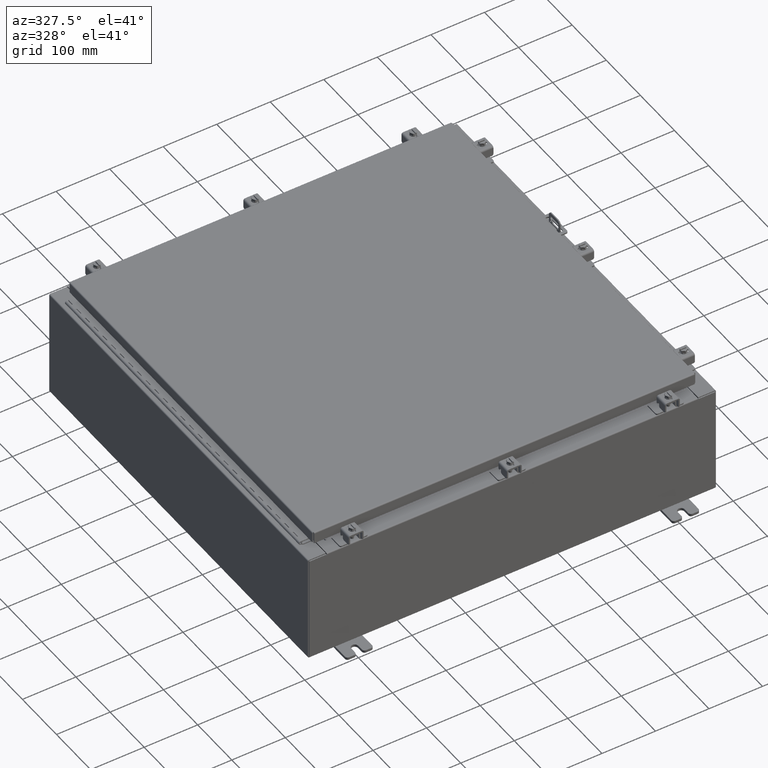
[diagram: clean part render]
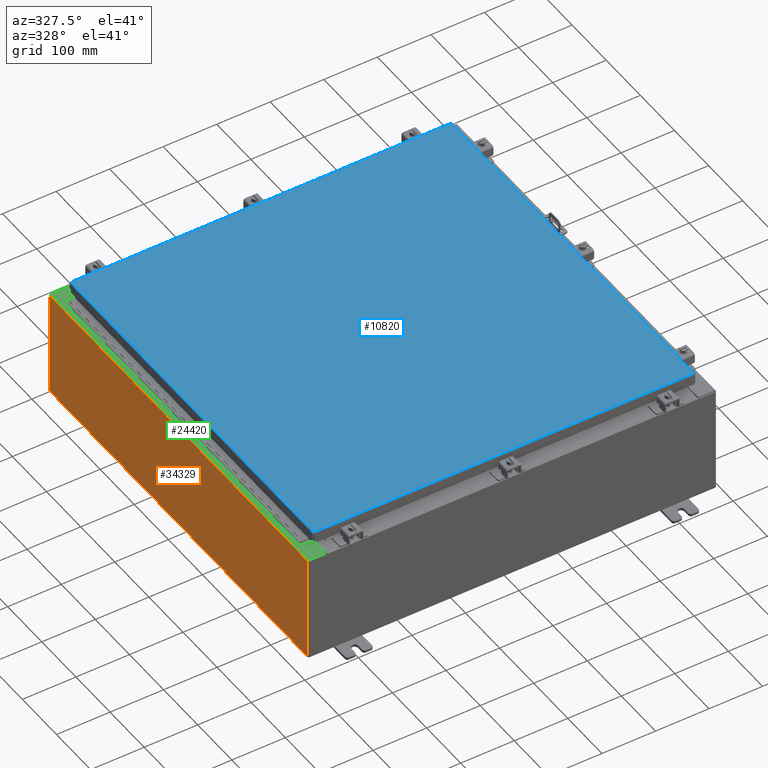
[diagram: same view with three faces highlighted in distinct colors, each labeled with its STEP entity id]
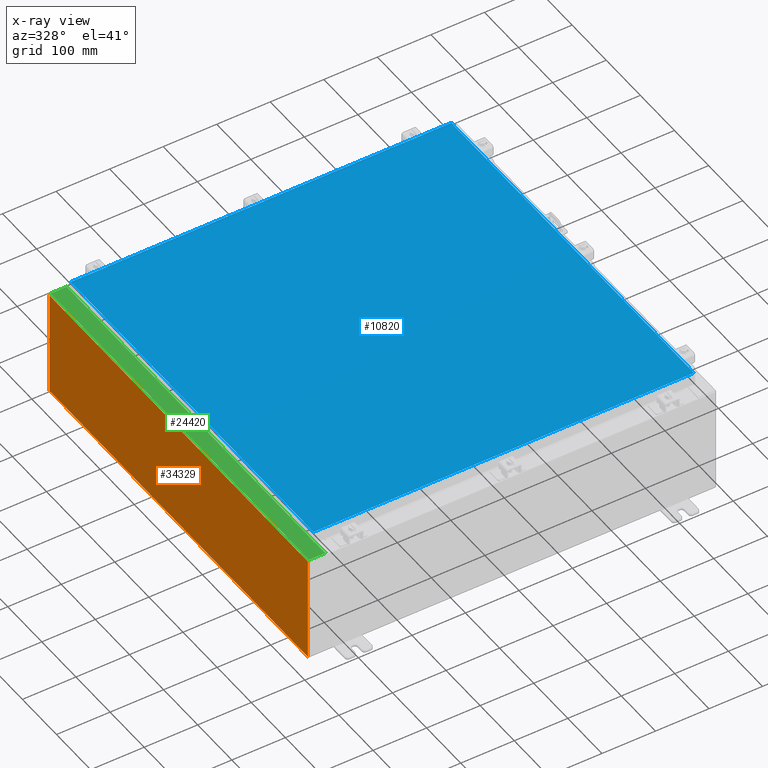
[diagram: x-ray of the same camera — body ghosted, the three highlighted faces saturated]
A machine part, auxiliary view with three faces highlighted in distinct colors.
The next image is the same camera in x-ray (body ghosted, the three faces saturated) — at least one of them is partly hidden behind the body in this view.
Their STEP definitions:

[orange] entity #34329 — the highlighted planar face has unit normal (1, 0, 0).
#305 = CARTESIAN_POINT ( 'NONE',  ( -15.00000000000000000, 14.92530000000000000, 0.01299999999999984700 ) ) ;
#1194 = ORIENTED_EDGE ( 'NONE', *, *, #12058, .T. ) ;
#2332 = CARTESIAN_POINT ( 'NONE',  ( -15.00000000000002800, 14.92530000000000000, 7.837599999999999200 ) ) ;
#2384 = VECTOR ( 'NONE', #35609, 39.37007874015748100 ) ;
#2671 = LINE ( 'NONE', #32194, #11513 ) ;
#2801 = CARTESIAN_POINT ( 'NONE',  ( -15.00000000000000000, 0.0000000000000000000, -5.403395625144962700E-014 ) ) ;
#4840 = CARTESIAN_POINT ( 'NONE',  ( -15.00000000000000000, 14.92530000000000000, 0.01299999999999983600 ) ) ;
#5801 = DIRECTION ( 'NONE',  ( 3.584876173029202900E-015, 0.0000000000000000000, -1.000000000000000000 ) ) ;
#7394 = VERTEX_POINT ( 'NONE', #4840 ) ;
#8090 = LINE ( 'NONE', #23418, #36907 ) ;
#9321 = DIRECTION ( 'NONE',  ( -0.0000000000000000000, 1.000000000000000000, -0.0000000000000000000 ) ) ;
#11513 = VECTOR ( 'NONE', #14353, 39.37007874015748100 ) ;
#12058 = EDGE_CURVE ( 'NONE', #24929, #14352, #8090, .T. ) ;
#12698 = VERTEX_POINT ( 'NONE', #2332 ) ;
#13562 = CARTESIAN_POINT ( 'NONE',  ( -15.00000000000002800, -14.92530000000000000, 7.837599999999999200 ) ) ;
#14055 = ORIENTED_EDGE ( 'NONE', *, *, #33696, .T. ) ;
#14352 = VERTEX_POINT ( 'NONE', #13562 ) ;
#14353 = DIRECTION ( 'NONE',  ( 3.584876173029202900E-015, 0.0000000000000000000, -1.000000000000000000 ) ) ;
#14772 = CARTESIAN_POINT ( 'NONE',  ( -15.00000000000002800, -14.92530000000000000, 7.837599999999999200 ) ) ;
#17224 = LINE ( 'NONE', #14772, #2384 ) ;
#18473 = LINE ( 'NONE', #305, #26400 ) ;
#18986 = ORIENTED_EDGE ( 'NONE', *, *, #23622, .T. ) ;
#23139 = EDGE_CURVE ( 'NONE', #24929, #7394, #18473, .T. ) ;
#23418 = CARTESIAN_POINT ( 'NONE',  ( -15.00000000000000000, -14.92530000000000000, -5.403395625144962700E-014 ) ) ;
#23546 = DIRECTION ( 'NONE',  ( 1.000000000000000000, 0.0000000000000000000, 3.584876173029202900E-015 ) ) ;
#23622 = EDGE_CURVE ( 'NONE', #12698, #7394, #2671, .T. ) ;
#24929 = VERTEX_POINT ( 'NONE', #29642 ) ;
#26400 = VECTOR ( 'NONE', #9321, 39.37007874015748100 ) ;
#29642 = CARTESIAN_POINT ( 'NONE',  ( -15.00000000000000000, -14.92530000000000000, 0.01299999999999984700 ) ) ;
#32194 = CARTESIAN_POINT ( 'NONE',  ( -15.00000000000000000, 14.92530000000000000, -5.403395625144962700E-014 ) ) ;
#33696 = EDGE_CURVE ( 'NONE', #14352, #12698, #17224, .T. ) ;
#34329 = ADVANCED_FACE ( 'NONE', ( #36303 ), #35458, .F. ) ;
#34835 = EDGE_LOOP ( 'NONE', ( #14055, #18986, #37800, #1194 ) ) ;
#35458 = PLANE ( 'NONE',  #36954 ) ;
#35609 = DIRECTION ( 'NONE',  ( 0.0000000000000000000, 1.000000000000000000, 0.0000000000000000000 ) ) ;
#36303 = FACE_OUTER_BOUND ( 'NONE', #34835, .T. ) ;
#36907 = VECTOR ( 'NONE', #38424, 39.37007874015748100 ) ;
#36954 = AXIS2_PLACEMENT_3D ( 'NONE', #2801, #23546, #5801 ) ;
#37800 = ORIENTED_EDGE ( 'NONE', *, *, #23139, .F. ) ;
#38424 = DIRECTION ( 'NONE',  ( -3.584876173029202900E-015, 0.0000000000000000000, 1.000000000000000000 ) ) ;

[blue] entity #10820 — the highlighted planar face has unit normal (0, 0, -1).
#2378 = VERTEX_POINT ( 'NONE', #20078 ) ;
#2640 = EDGE_CURVE ( 'NONE', #19468, #36786, #19563, .T. ) ;
#2831 = ORIENTED_EDGE ( 'NONE', *, *, #11045, .T. ) ;
#3560 = CARTESIAN_POINT ( 'NONE',  ( 13.99030000000000100, 14.00629999999999400, 8.878505979408856000E-016 ) ) ;
#4119 = AXIS2_PLACEMENT_3D ( 'NONE', #17508, #8731, #29505 ) ;
#4448 = DIRECTION ( 'NONE',  ( 1.000000000000000000, -0.0000000000000000000, -0.0000000000000000000 ) ) ;
#5032 = EDGE_CURVE ( 'NONE', #36786, #2378, #30072, .T. ) ;
#6018 = LINE ( 'NONE', #9336, #12970 ) ;
#6387 = CARTESIAN_POINT ( 'NONE',  ( -13.99029999999999600, -14.00630000000000300, 3.073328992872296200E-015 ) ) ;
#6487 = EDGE_LOOP ( 'NONE', ( #9939, #2831, #7903, #27385 ) ) ;
#7903 = ORIENTED_EDGE ( 'NONE', *, *, #19054, .T. ) ;
#8164 = LINE ( 'NONE', #30793, #31871 ) ;
#8731 = DIRECTION ( 'NONE',  ( 0.0000000000000000000, 0.0000000000000000000, -1.000000000000000000 ) ) ;
#9180 = CARTESIAN_POINT ( 'NONE',  ( -13.99029999999999800, 14.00629999999999600, -2.048885995248197400E-016 ) ) ;
#9336 = CARTESIAN_POINT ( 'NONE',  ( 13.99030000000000100, 14.00629999999999400, 8.878505979408856000E-016 ) ) ;
#9939 = ORIENTED_EDGE ( 'NONE', *, *, #5032, .T. ) ;
#10820 = ADVANCED_FACE ( 'NONE', ( #16473 ), #14559, .F. ) ;
#11045 = EDGE_CURVE ( 'NONE', #2378, #14121, #8164, .T. ) ;
#11679 = VECTOR ( 'NONE', #24607, 39.37007874015748100 ) ;
#12970 = VECTOR ( 'NONE', #15277, 39.37007874015748100 ) ;
#12977 = DIRECTION ( 'NONE',  ( 0.0000000000000000000, 1.000000000000000000, 0.0000000000000000000 ) ) ;
#14121 = VERTEX_POINT ( 'NONE', #3560 ) ;
#14559 = PLANE ( 'NONE',  #4119 ) ;
#15277 = DIRECTION ( 'NONE',  ( -1.000000000000000000, -0.0000000000000000000, -0.0000000000000000000 ) ) ;
#16473 = FACE_OUTER_BOUND ( 'NONE', #6487, .T. ) ;
#17508 = CARTESIAN_POINT ( 'NONE',  ( 0.0000000000000000000, 0.0000000000000000000, 0.0000000000000000000 ) ) ;
#19054 = EDGE_CURVE ( 'NONE', #14121, #19468, #6018, .T. ) ;
#19468 = VERTEX_POINT ( 'NONE', #9180 ) ;
#19563 = LINE ( 'NONE', #33442, #11679 ) ;
#20078 = CARTESIAN_POINT ( 'NONE',  ( 13.99030000000000100, -14.00630000000000300, -2.048885995248197400E-016 ) ) ;
#22896 = CARTESIAN_POINT ( 'NONE',  ( -13.99029999999999200, -14.00630000000000300, 3.056254942911894500E-015 ) ) ;
#24607 = DIRECTION ( 'NONE',  ( 0.0000000000000000000, -1.000000000000000000, 0.0000000000000000000 ) ) ;
#27385 = ORIENTED_EDGE ( 'NONE', *, *, #2640, .T. ) ;
#28205 = VECTOR ( 'NONE', #4448, 39.37007874015748100 ) ;
#29505 = DIRECTION ( 'NONE',  ( -1.000000000000000000, 0.0000000000000000000, -0.0000000000000000000 ) ) ;
#30072 = LINE ( 'NONE', #22896, #28205 ) ;
#30793 = CARTESIAN_POINT ( 'NONE',  ( 13.99030000000000100, -14.00630000000000300, -2.048885995248197400E-016 ) ) ;
#31871 = VECTOR ( 'NONE', #12977, 39.37007874015748100 ) ;
#33442 = CARTESIAN_POINT ( 'NONE',  ( -13.99029999999999800, 14.00629999999999600, -2.048885995248197400E-016 ) ) ;
#36786 = VERTEX_POINT ( 'NONE', #6387 ) ;

[green] entity #24420 — the highlighted planar face has unit normal (0, 0, -1).
#425 = DIRECTION ( 'NONE',  ( 1.000000000000000000, 0.0000000000000000000, 0.0000000000000000000 ) ) ;
#674 = VECTOR ( 'NONE', #1295, 39.37007874015748100 ) ;
#949 = VECTOR ( 'NONE', #32187, 39.37007874015748100 ) ;
#1295 = DIRECTION ( 'NONE',  ( 1.000000000000000000, 0.0000000000000000000, -2.170286390200049500E-014 ) ) ;
#1297 = DIRECTION ( 'NONE',  ( -0.0000000000000000000, -1.000000000000000000, -0.0000000000000000000 ) ) ;
#1407 = ORIENTED_EDGE ( 'NONE', *, *, #17931, .T. ) ;
#1497 = LINE ( 'NONE', #28131, #32214 ) ;
#1976 = EDGE_CURVE ( 'NONE', #17381, #30851, #1497, .T. ) ;
#2394 = CARTESIAN_POINT ( 'NONE',  ( -13.71270000000003000, 13.59374999999999800, 7.925300000000010700 ) ) ;
#2427 = DIRECTION ( 'NONE',  ( -1.000000000000000000, 0.0000000000000000000, -7.132762385546384700E-015 ) ) ;
#2941 = CARTESIAN_POINT ( 'NONE',  ( -13.69970000000003000, 14.92530000000000000, 7.925300000000008900 ) ) ;
#3118 = DIRECTION ( 'NONE',  ( 7.132762385546384700E-015, 0.0000000000000000000, -1.000000000000000000 ) ) ;
#3220 = VERTEX_POINT ( 'NONE', #27411 ) ;
#3258 = ORIENTED_EDGE ( 'NONE', *, *, #34350, .T. ) ;
#3775 = LINE ( 'NONE', #38055, #9807 ) ;
#4082 = CARTESIAN_POINT ( 'NONE',  ( -13.71270000000003000, -13.59375000000000000, 7.925300000000010700 ) ) ;
#4449 = LINE ( 'NONE', #18940, #20243 ) ;
#4677 = VECTOR ( 'NONE', #5910, 39.37007874015748100 ) ;
#5046 = LINE ( 'NONE', #16142, #36666 ) ;
#5910 = DIRECTION ( 'NONE',  ( 0.0000000000000000000, 1.000000000000000000, 0.0000000000000000000 ) ) ;
#6027 = EDGE_CURVE ( 'NONE', #29984, #17381, #4449, .T. ) ;
#6925 = CARTESIAN_POINT ( 'NONE',  ( -13.75005000000002800, 13.63109999999999600, 7.925300000000007100 ) ) ;
#7113 = CARTESIAN_POINT ( 'NONE',  ( -14.91230000000002900, 14.92530000000000000, 7.925300000000000000 ) ) ;
#8516 = CARTESIAN_POINT ( 'NONE',  ( -13.75005000000002800, 13.59374999999999800, 7.925300000000007100 ) ) ;
#8889 = LINE ( 'NONE', #23026, #949 ) ;
#9807 = VECTOR ( 'NONE', #2427, 39.37007874015748100 ) ;
#10477 = LINE ( 'NONE', #30930, #674 ) ;
#10810 = VERTEX_POINT ( 'NONE', #26359 ) ;
#11977 = CARTESIAN_POINT ( 'NONE',  ( -13.75005000000002800, -13.59375000000000000, 7.925300000000007100 ) ) ;
#12513 = CARTESIAN_POINT ( 'NONE',  ( -13.75005000000002800, -13.61242500000000000, 7.925300000000010700 ) ) ;
#12998 = VECTOR ( 'NONE', #24837, 39.37007874015748100 ) ;
#13903 = ORIENTED_EDGE ( 'NONE', *, *, #36114, .F. ) ;
#14847 = LINE ( 'NONE', #4082, #12998 ) ;
#15256 = VERTEX_POINT ( 'NONE', #26320 ) ;
#15485 = DIRECTION ( 'NONE',  ( 1.000000000000000000, 0.0000000000000000000, 0.0000000000000000000 ) ) ;
#16142 = CARTESIAN_POINT ( 'NONE',  ( -13.69970000000003000, 0.0000000000000000000, 7.925300000000008900 ) ) ;
#16220 = AXIS2_PLACEMENT_3D ( 'NONE', #12513, #33311, #15485 ) ;
#16835 = ORIENTED_EDGE ( 'NONE', *, *, #30386, .F. ) ;
#17222 = VECTOR ( 'NONE', #27850, 39.37007874015748100 ) ;
#17381 = VERTEX_POINT ( 'NONE', #2394 ) ;
#17622 = EDGE_CURVE ( 'NONE', #32329, #3220, #35901, .T. ) ;
#17931 = EDGE_CURVE ( 'NONE', #21348, #15256, #3775, .T. ) ;
#17954 = CIRCLE ( 'NONE', #33742, 0.01867499999999949400 ) ;
#18230 = DIRECTION ( 'NONE',  ( -7.132762385546384700E-015, -0.0000000000000000000, 1.000000000000000000 ) ) ;
#18940 = CARTESIAN_POINT ( 'NONE',  ( -13.75005000000002800, 13.59374999999999800, 7.925300000000010700 ) ) ;
#20105 = VERTEX_POINT ( 'NONE', #11977 ) ;
#20243 = VECTOR ( 'NONE', #28168, 39.37007874015748100 ) ;
#20451 = LINE ( 'NONE', #29684, #4677 ) ;
#20899 = PLANE ( 'NONE',  #30600 ) ;
#21348 = VERTEX_POINT ( 'NONE', #2941 ) ;
#21582 = EDGE_CURVE ( 'NONE', #32329, #15256, #33066, .T. ) ;
#21828 = EDGE_CURVE ( 'NONE', #10810, #26884, #8889, .T. ) ;
#22360 = VERTEX_POINT ( 'NONE', #32271 ) ;
#23026 = CARTESIAN_POINT ( 'NONE',  ( -13.69970000000003000, 13.63109999999999800, 7.925300000000009800 ) ) ;
#23232 = ORIENTED_EDGE ( 'NONE', *, *, #1976, .F. ) ;
#23350 = EDGE_CURVE ( 'NONE', #10810, #21348, #5046, .T. ) ;
#23888 = DIRECTION ( 'NONE',  ( -1.000000000000000000, 0.0000000000000000000, -7.132762385546384700E-015 ) ) ;
#24420 = ADVANCED_FACE ( 'NONE', ( #25845 ), #20899, .F. ) ;
#24837 = DIRECTION ( 'NONE',  ( -1.000000000000000000, 0.0000000000000000000, 0.0000000000000000000 ) ) ;
#25845 = FACE_OUTER_BOUND ( 'NONE', #32031, .T. ) ;
#26320 = CARTESIAN_POINT ( 'NONE',  ( -14.91230000000002900, 14.92530000000000000, 7.925300000000000000 ) ) ;
#26359 = CARTESIAN_POINT ( 'NONE',  ( -13.69970000000003000, 13.63109999999999800, 7.925300000000008900 ) ) ;
#26463 = ORIENTED_EDGE ( 'NONE', *, *, #6027, .F. ) ;
#26698 = ORIENTED_EDGE ( 'NONE', *, *, #21828, .F. ) ;
#26884 = VERTEX_POINT ( 'NONE', #6925 ) ;
#27226 = CARTESIAN_POINT ( 'NONE',  ( -13.75005000000002800, -13.63109999999999800, 7.925300000000007100 ) ) ;
#27408 = VERTEX_POINT ( 'NONE', #27226 ) ;
#27411 = CARTESIAN_POINT ( 'NONE',  ( -13.69970000000003000, -14.92530000000000000, 7.925300000000008900 ) ) ;
#27458 = ORIENTED_EDGE ( 'NONE', *, *, #34477, .F. ) ;
#27639 = DIRECTION ( 'NONE',  ( 1.000000000000000000, -0.0000000000000000000, 7.132762385546384700E-015 ) ) ;
#27850 = DIRECTION ( 'NONE',  ( -0.0000000000000000000, 1.000000000000000000, -0.0000000000000000000 ) ) ;
#27960 = VECTOR ( 'NONE', #27639, 39.37007874015748100 ) ;
#28131 = CARTESIAN_POINT ( 'NONE',  ( -13.71270000000003000, 13.59375000000000000, 7.925300000000010700 ) ) ;
#28168 = DIRECTION ( 'NONE',  ( 1.000000000000000000, 0.0000000000000000000, 0.0000000000000000000 ) ) ;
#28283 = ORIENTED_EDGE ( 'NONE', *, *, #17622, .T. ) ;
#29684 = CARTESIAN_POINT ( 'NONE',  ( -13.69970000000003000, 0.0000000000000000000, 7.925300000000008900 ) ) ;
#29984 = VERTEX_POINT ( 'NONE', #8516 ) ;
#30386 = EDGE_CURVE ( 'NONE', #27408, #22360, #10477, .T. ) ;
#30600 = AXIS2_PLACEMENT_3D ( 'NONE', #35630, #3118, #23888 ) ;
#30610 = ORIENTED_EDGE ( 'NONE', *, *, #21582, .F. ) ;
#30758 = ORIENTED_EDGE ( 'NONE', *, *, #23350, .T. ) ;
#30851 = VERTEX_POINT ( 'NONE', #36267 ) ;
#30930 = CARTESIAN_POINT ( 'NONE',  ( -13.75005000000002800, -13.63109999999999800, 7.925300000000010700 ) ) ;
#31633 = CIRCLE ( 'NONE', #16220, 0.01867499999999949400 ) ;
#32031 = EDGE_LOOP ( 'NONE', ( #26698, #30758, #1407, #30610, #28283, #3258, #16835, #27458, #32081, #23232, #26463, #13903 ) ) ;
#32081 = ORIENTED_EDGE ( 'NONE', *, *, #34588, .F. ) ;
#32187 = DIRECTION ( 'NONE',  ( -1.000000000000000000, -4.340572780400098900E-014, 2.170286390200049500E-014 ) ) ;
#32214 = VECTOR ( 'NONE', #1297, 39.37007874015748100 ) ;
#32271 = CARTESIAN_POINT ( 'NONE',  ( -13.69970000000003000, -13.63110000000000200, 7.925300000000008900 ) ) ;
#32329 = VERTEX_POINT ( 'NONE', #38120 ) ;
#33066 = LINE ( 'NONE', #7113, #17222 ) ;
#33311 = DIRECTION ( 'NONE',  ( -7.132762385546384700E-015, -0.0000000000000000000, 1.000000000000000000 ) ) ;
#33645 = CARTESIAN_POINT ( 'NONE',  ( -5.679009539018309800E-014, -14.92530000000000000, 7.925300000000105700 ) ) ;
#33742 = AXIS2_PLACEMENT_3D ( 'NONE', #36091, #18230, #425 ) ;
#34350 = EDGE_CURVE ( 'NONE', #3220, #22360, #20451, .T. ) ;
#34477 = EDGE_CURVE ( 'NONE', #20105, #27408, #31633, .T. ) ;
#34588 = EDGE_CURVE ( 'NONE', #30851, #20105, #14847, .T. ) ;
#35630 = CARTESIAN_POINT ( 'NONE',  ( -5.679009539018309800E-014, 0.0000000000000000000, 7.925300000000105700 ) ) ;
#35901 = LINE ( 'NONE', #33645, #27960 ) ;
#36091 = CARTESIAN_POINT ( 'NONE',  ( -13.75005000000002800, 13.61242499999999600, 7.925300000000010700 ) ) ;
#36114 = EDGE_CURVE ( 'NONE', #26884, #29984, #17954, .T. ) ;
#36267 = CARTESIAN_POINT ( 'NONE',  ( -13.71270000000003000, -13.59375000000000000, 7.925300000000010700 ) ) ;
#36666 = VECTOR ( 'NONE', #37010, 39.37007874015748100 ) ;
#37010 = DIRECTION ( 'NONE',  ( 0.0000000000000000000, 1.000000000000000000, 0.0000000000000000000 ) ) ;
#38055 = CARTESIAN_POINT ( 'NONE',  ( -5.679009539018309800E-014, 14.92530000000000000, 7.925300000000105700 ) ) ;
#38120 = CARTESIAN_POINT ( 'NONE',  ( -14.91230000000002900, -14.92530000000000000, 7.925300000000000000 ) ) ;